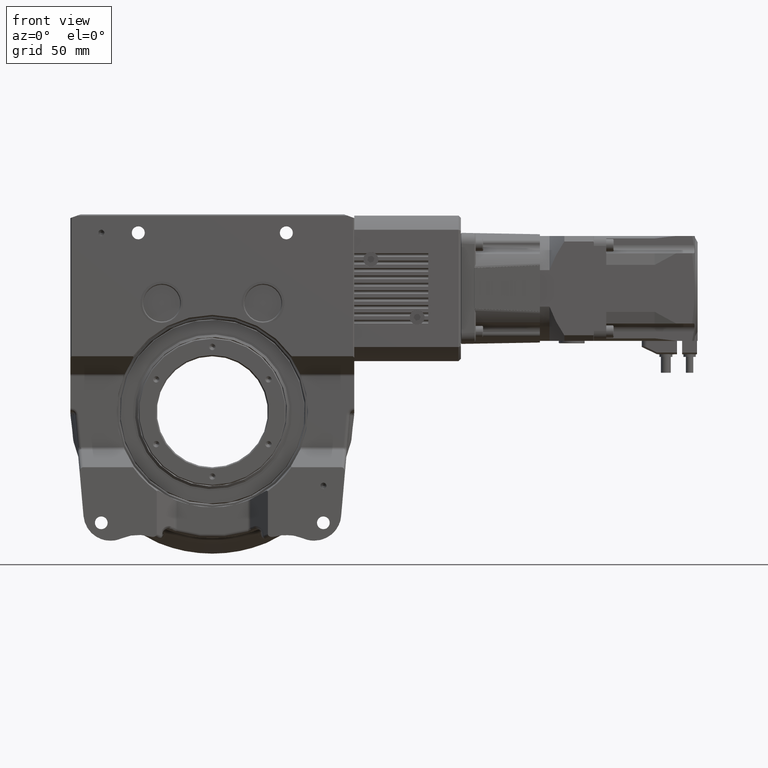
[diagram: clean part render]
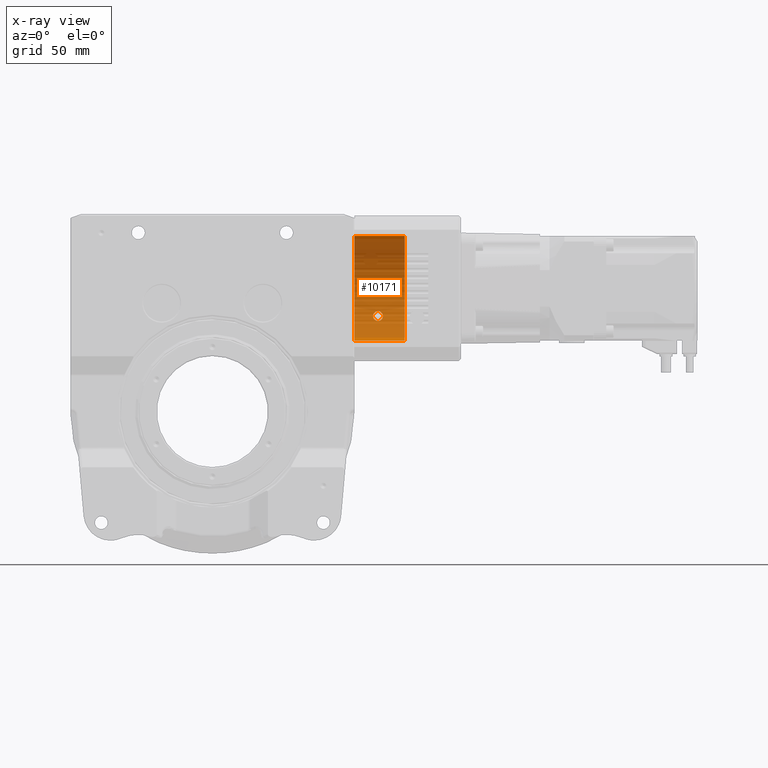
[diagram: x-ray — body ghosted, one internal face saturated and labeled with its STEP entity id]
A machine part, front view, then the same camera in x-ray: the body is ghosted and one INTERNAL B-rep face — a face not visible from any outside direction — is saturated and labeled: STEP entity #10171.
In plain terms, the highlighted cylindrical surface (partial cylindrical patch) has radius 42.5 mm, axis along (-1, 0, -0).
Its self-contained STEP definition (entity closure, byte-faithful):
#301 = CARTESIAN_POINT ( 'NONE',  ( 41.00000000000000000, -1.479556674915532139E-14, -9.103828801926278898E-15 ) ) ;
#400 = CARTESIAN_POINT ( 'NONE',  ( 15.29978478132024833, 36.06660106536676835, -22.48223053018564954 ) ) ;
#817 = CARTESIAN_POINT ( 'NONE',  ( 16.31345728858891775, 34.26561410451524381, -25.14203194345421366 ) ) ;
#935 = EDGE_CURVE ( 'NONE', #71832, #28870, #65900, .T. ) ;
#1270 = CARTESIAN_POINT ( 'NONE',  ( 15.51432274911836018, 35.22140623543903359, -23.78481578097856541 ) ) ;
#1374 = CARTESIAN_POINT ( 'NONE',  ( 22.28540000549770284, 34.34727685331174030, -25.03061622257607155 ) ) ;
#1685 = CARTESIAN_POINT ( 'NONE',  ( 15.33563922787203637, 35.71689265845810013, -23.03366875791155266 ) ) ;
#2111 = CARTESIAN_POINT ( 'NONE',  ( 15.59160713736390136, 35.08209012854449327, -23.98951764624354155 ) ) ;
#2220 = CARTESIAN_POINT ( 'NONE',  ( 22.57356522680116484, 34.63216682195626817, -24.63459177904891817 ) ) ;
#2537 = CARTESIAN_POINT ( 'NONE',  ( 17.08951086396071162, 33.76643756617028913, -25.80931757875746868 ) ) ;
#2652 = CARTESIAN_POINT ( 'NONE',  ( 22.88920799413548934, 35.05030438437506035, -24.03595390986932756 ) ) ;
#3059 = CARTESIAN_POINT ( 'NONE',  ( 21.27685701688333353, 33.70328194105818653, -25.89097600904747409 ) ) ;
#3480 = CARTESIAN_POINT ( 'NONE',  ( 22.90846093382135962, 35.08220382917011904, -23.98935155917719797 ) ) ;
#3926 = CARTESIAN_POINT ( 'NONE',  ( 23.18548905780180291, 35.83887962600027777, -22.84343478459900467 ) ) ;
#4351 = CARTESIAN_POINT ( 'NONE',  ( 21.79735604803297733, 37.77867800301650902, -19.46909322326048652 ) ) ;
#4771 = CARTESIAN_POINT ( 'NONE',  ( 23.14852174951569808, 35.64040922566865532, -23.15256229206407923 ) ) ;
#5200 = CARTESIAN_POINT ( 'NONE',  ( 22.97492122321878938, 36.84315321652081821, -21.18565376194870353 ) ) ;
#5543 = ORIENTED_EDGE ( 'NONE', *, *, #74014, .T. ) ;
#6057 = CARTESIAN_POINT ( 'NONE',  ( 18.16253179362676207, 38.18286965525741294, -18.66280604335118198 ) ) ;
#7368 = CARTESIAN_POINT ( 'NONE',  ( 15.54309646532040112, 36.87185967419583221, -21.13565540575528701 ) ) ;
#7802 = CARTESIAN_POINT ( 'NONE',  ( 15.30015631575340507, 36.02940669188735257, -22.54178166052903975 ) ) ;
#8062 = CIRCLE ( 'NONE', #80267, 42.50000000000000000 ) ;
#8249 = CARTESIAN_POINT ( 'NONE',  ( 18.15138969627565402, 33.35731052550647036, -26.33679968175579234 ) ) ;
#8653 = CARTESIAN_POINT ( 'NONE',  ( 16.23666141247848316, 34.32992435367859940, -25.05440728717464438 ) ) ;
#8673 = ORIENTED_EDGE ( 'NONE', *, *, #935, .F. ) ;
#8755 = CARTESIAN_POINT ( 'NONE',  ( 22.04941873299804200, 34.15870454558252334, -25.28705151049062394 ) ) ;
#9073 = CARTESIAN_POINT ( 'NONE',  ( 15.37648627386421474, 35.56098704304270797, -23.27361297623175673 ) ) ;
#9184 = CARTESIAN_POINT ( 'NONE',  ( 22.80612336903905302, 34.92305342265012769, -24.22063027322121087 ) ) ;
#9502 = CARTESIAN_POINT ( 'NONE',  ( 15.58957560607638015, 35.08550728274053654, -23.98452063231084708 ) ) ;
#9616 = CARTESIAN_POINT ( 'NONE',  ( 21.53045731662804840, 33.82988609232091193, -25.72526025444771491 ) ) ;
#9986 = CARTESIAN_POINT ( 'NONE',  ( 176.2081528017129699, -6.358779235422208944E-14, -3.912606967342589238E-14 ) ) ;
#10029 = CARTESIAN_POINT ( 'NONE',  ( 23.07174452827394973, 35.41261384975426552, -23.49907201918068012 ) ) ;
#10171 = ADVANCED_FACE ( 'NONE', ( #41758, #68706 ), #81804, .F. ) ;
#10452 = CARTESIAN_POINT ( 'NONE',  ( 23.08143645917277453, 35.43756921907156965, -23.46138105707414212 ) ) ;
#10894 = CARTESIAN_POINT ( 'NONE',  ( 23.16734957612590051, 35.72557691357537379, -23.02053683810790119 ) ) ;
#11197 = ORIENTED_EDGE ( 'NONE', *, *, #40093, .F. ) ;
#11419 = EDGE_LOOP ( 'NONE', ( #8673, #11197 ) ) ;
#11736 = CARTESIAN_POINT ( 'NONE',  ( 23.11421693242535724, 35.53144362120588085, -23.31880737360579658 ) ) ;
#12224 = ORIENTED_EDGE ( 'NONE', *, *, #63042, .F. ) ;
#12242 = CARTESIAN_POINT ( 'NONE',  ( 176.2081528017129699, -6.719216272908639409E-14, -42.50000000000000000 ) ) ;
#12599 = CARTESIAN_POINT ( 'NONE',  ( 17.16358638402724779, 37.94840697371871130, -19.13445936909795009 ) ) ;
#13354 = DIRECTION ( 'NONE',  ( -1.000000000000000000, 3.608674816867150188E-16, 1.632680918566404821E-16 ) ) ;
#13906 = CARTESIAN_POINT ( 'NONE',  ( 16.71624586886541408, 37.77945592378642914, -19.46649644198949858 ) ) ;
#14315 = CARTESIAN_POINT ( 'NONE',  ( 16.36425067430731772, 34.22499853139120773, -25.19721344180907252 ) ) ;
#14419 = CARTESIAN_POINT ( 'NONE',  ( 22.20783254219951530, 34.28154108734690197, -25.12044091341996932 ) ) ;
#14740 = CARTESIAN_POINT ( 'NONE',  ( 17.19714433674786136, 33.71449985628262169, -25.87694277536891363 ) ) ;
#14851 = CARTESIAN_POINT ( 'NONE',  ( 19.74117534102132510, 33.29019343801216735, -26.41997742725870779 ) ) ;
#15294 = CARTESIAN_POINT ( 'NONE',  ( 22.45551148787222573, 34.50712700814493417, -24.80962703882231679 ) ) ;
#16019 = CARTESIAN_POINT ( 'NONE',  ( 16.28789686547316862, 34.28675290107270968, -25.11325879475811007 ) ) ;
#16120 = CARTESIAN_POINT ( 'NONE',  ( 21.75336574613267260, 33.95656476141162727, -25.55806863962160946 ) ) ;
#16565 = CARTESIAN_POINT ( 'NONE',  ( 23.04258757267195534, 35.34126986828706407, -23.60647370471283679 ) ) ;
#16973 = CARTESIAN_POINT ( 'NONE',  ( 23.19450660354412364, 35.92366600673088328, -22.70987164790558666 ) ) ;
#17392 = CARTESIAN_POINT ( 'NONE',  ( 23.19637320554696913, 35.94747642876362193, -22.67220452326321123 ) ) ;
#17829 = CARTESIAN_POINT ( 'NONE',  ( 19.81055723592430340, 38.23803734503121632, -18.54999999999999361 ) ) ;
#17911 = CARTESIAN_POINT ( 'NONE',  ( 9.436895709313829016E-15, -8.998161896089599844E-15, 42.50000000000000000 ) ) ;
#18249 = CARTESIAN_POINT ( 'NONE',  ( 23.02305751782932930, 35.29840338262187061, -23.67051116075690587 ) ) ;
#18663 = CARTESIAN_POINT ( 'NONE',  ( 15.55178413372251711, 36.88534003016341956, -21.11212819644573457 ) ) ;
#18735 = LINE ( 'NONE', #12242, #80385 ) ;
#19536 = CARTESIAN_POINT ( 'NONE',  ( 16.35612342718946977, 37.59997237058190223, -19.81140975675401705 ) ) ;
#20837 = CARTESIAN_POINT ( 'NONE',  ( 18.70841364712721955, 33.26631178835430802, -26.45000000000000639 ) ) ;
#21146 = ORIENTED_EDGE ( 'NONE', *, *, #43737, .T. ) ;
#21254 = CARTESIAN_POINT ( 'NONE',  ( 15.55656300985439167, 35.14282507855106985, -23.90056033438833438 ) ) ;
#21360 = CARTESIAN_POINT ( 'NONE',  ( 20.80847621143253434, 33.51857051253227837, -26.12959476599358055 ) ) ;
#21683 = CARTESIAN_POINT ( 'NONE',  ( 19.25000000000000000, 33.26631178835430802, -26.45000000000000284 ) ) ;
#21793 = CARTESIAN_POINT ( 'NONE',  ( 21.96789840726524190, 34.09902684896525926, -25.36757139316960163 ) ) ;
#22129 = CARTESIAN_POINT ( 'NONE',  ( 16.34312850872915845, 34.24173430225272341, -25.17448498346218955 ) ) ;
#22231 = CARTESIAN_POINT ( 'NONE',  ( 20.98905128085062088, 33.58140029748380329, -26.04887529864798168 ) ) ;
#22664 = CARTESIAN_POINT ( 'NONE',  ( 19.25000000000000000, 38.23803734503120211, -18.55000000000000071 ) ) ;
#23060 = CARTESIAN_POINT ( 'NONE',  ( 20.76024621163769623, 33.50252658490551028, -26.15017689690946412 ) ) ;
#23509 = CARTESIAN_POINT ( 'NONE',  ( 22.93459501938466261, 35.12633647211259103, -23.92478217558063491 ) ) ;
#23920 = CARTESIAN_POINT ( 'NONE',  ( 22.49296222093694197, 37.37026131007877439, -20.24141479686581491 ) ) ;
#24345 = CARTESIAN_POINT ( 'NONE',  ( 21.18411973732698783, 37.98874635893057672, -19.05527031463867260 ) ) ;
#24788 = CARTESIAN_POINT ( 'NONE',  ( 23.19846393322838196, 35.98637907297585059, -22.61040669758322252 ) ) ;
#25211 = CARTESIAN_POINT ( 'NONE',  ( 21.35755064518556168, 37.93779400534084090, -19.15655008530299241 ) ) ;
#26073 = CARTESIAN_POINT ( 'NONE',  ( 15.65624224740684944, 37.02883677722697797, -20.85936073706819371 ) ) ;
#26508 = CARTESIAN_POINT ( 'NONE',  ( 15.30302805342804540, 36.16002755954627901, -22.33154333065028041 ) ) ;
#27148 = EDGE_CURVE ( 'NONE', #35101, #52426, #18735, .T. ) ;
#27357 = CARTESIAN_POINT ( 'NONE',  ( 17.61743047935344464, 33.54407415138572901, -26.09684201016513683 ) ) ;
#27797 = CARTESIAN_POINT ( 'NONE',  ( 16.36968215787350900, 34.22072573447574229, -25.20301466979887195 ) ) ;
#28214 = CARTESIAN_POINT ( 'NONE',  ( 15.58668569227041978, 35.09038715090879634, -23.97738373400684253 ) ) ;
#28284 = DIRECTION ( 'NONE',  ( -1.000000000000000000, 3.608674816867150188E-16, 2.220446049250315053E-16 ) ) ;
#28319 = CARTESIAN_POINT ( 'NONE',  ( 19.39013904087209283, 33.26631178835432223, -26.45000000000000639 ) ) ;
#28644 = CARTESIAN_POINT ( 'NONE',  ( 16.20235072183273672, 34.35989713473707496, -25.01343228042355449 ) ) ;
#28753 = CARTESIAN_POINT ( 'NONE',  ( 22.57895942161077230, 34.63815976785981832, -24.62616362261041658 ) ) ;
#28870 = VERTEX_POINT ( 'NONE', #51045 ) ;
#29074 = CARTESIAN_POINT ( 'NONE',  ( 15.41878521964541982, 35.42805733015586611, -23.47629001751365863 ) ) ;
#29180 = CARTESIAN_POINT ( 'NONE',  ( 22.90047231023990548, 35.06885516991229679, -24.00886576047836840 ) ) ;
#29583 = CARTESIAN_POINT ( 'NONE',  ( 21.89679758047902780, 34.05041180987250016, -25.43274505094753479 ) ) ;
#30007 = CARTESIAN_POINT ( 'NONE',  ( 23.19868709589793809, 35.99173905112439087, -22.60187361891378899 ) ) ;
#30130 = CARTESIAN_POINT ( 'NONE',  ( -9.436895709313829016E-15, -3.604370374864314904E-15, -42.50000000000000000 ) ) ;
#30450 = CARTESIAN_POINT ( 'NONE',  ( 22.99679945245626911, 36.80671140426903776, -21.24889606100329331 ) ) ;
#30865 = CARTESIAN_POINT ( 'NONE',  ( 21.47022343335745376, 37.90050533255458021, -19.23023890977423989 ) ) ;
#31288 = CARTESIAN_POINT ( 'NONE',  ( 23.09408847473070736, 36.61087742835304226, -21.58436131980893791 ) ) ;
#31732 = CARTESIAN_POINT ( 'NONE',  ( 22.19614968477443284, 37.56965996165462940, -19.86884123445541661 ) ) ;
#32577 = CARTESIAN_POINT ( 'NONE',  ( 16.56011985033142153, 37.70704833095830821, -19.60657067845178148 ) ) ;
#33460 = CARTESIAN_POINT ( 'NONE',  ( 15.39926696315541577, 36.61011447597523727, -21.58694273435308020 ) ) ;
#34316 = CARTESIAN_POINT ( 'NONE',  ( 15.30123996589861157, 35.99354157486477845, -22.59900384689430197 ) ) ;
#34427 = CARTESIAN_POINT ( 'NONE',  ( 19.95092496073077726, 33.31594084154957613, -26.38747486224314542 ) ) ;
#34759 = CARTESIAN_POINT ( 'NONE',  ( 15.32770272191052818, 35.75734939930750045, -22.97077068582407833 ) ) ;
#34858 = CARTESIAN_POINT ( 'NONE',  ( 20.35344654913742701, 33.38885103068976434, -26.29523891422229198 ) ) ;
#35101 = VERTEX_POINT ( 'NONE', #78156 ) ;
#35272 = CARTESIAN_POINT ( 'NONE',  ( 22.55119564032431967, 34.60758951015088769, -24.66911939475972559 ) ) ;
#35595 = CARTESIAN_POINT ( 'NONE',  ( 15.56825395363443931, 35.12203447541261880, -23.93106250024920101 ) ) ;
#35698 = CARTESIAN_POINT ( 'NONE',  ( 22.84646335840171716, 34.98310752161835069, -24.13369880942343926 ) ) ;
#36128 = CARTESIAN_POINT ( 'NONE',  ( 22.11842668570188053, 34.21142503220566766, -25.21563940238661061 ) ) ;
#36973 = CARTESIAN_POINT ( 'NONE',  ( 23.04984558528059324, 36.70741542987560990, -21.41976802186825424 ) ) ;
#37422 = CARTESIAN_POINT ( 'NONE',  ( 23.19786993986317114, 35.97367491484273927, -22.63061263172598458 ) ) ;
#37689 = DIRECTION ( 'NONE',  ( -2.220446049250310123E-16, -8.480871470268981378E-17, -1.000000000000000000 ) ) ;
#38254 = CARTESIAN_POINT ( 'NONE',  ( 23.18269033171392834, 36.32824580503003631, -22.05793991299401924 ) ) ;
#38692 = CARTESIAN_POINT ( 'NONE',  ( 16.39812243550938220, 37.62354255053896424, -19.76660493023240406 ) ) ;
#39110 = CARTESIAN_POINT ( 'NONE',  ( 16.82504827822642568, 37.82427967172763772, -19.37886550660506657 ) ) ;
#39537 = CARTESIAN_POINT ( 'NONE',  ( 15.32113688175901878, 36.31914855417892340, -22.07180179811740928 ) ) ;
#40093 = EDGE_CURVE ( 'NONE', #28870, #71832, #78169, .T. ) ;
#40411 = CARTESIAN_POINT ( 'NONE',  ( 16.32647465895040639, 37.58290756029298052, -19.84376645725452448 ) ) ;
#40828 = CARTESIAN_POINT ( 'NONE',  ( 17.62287609769035157, 33.54215171034679344, -26.09931205489934669 ) ) ;
#41266 = CARTESIAN_POINT ( 'NONE',  ( 15.35948555936215953, 35.61913227510343205, -23.18456309245950564 ) ) ;
#41377 = CARTESIAN_POINT ( 'NONE',  ( 22.10697844710403004, 34.20254724804498636, -25.22768091385785283 ) ) ;
#41423 = AXIS2_PLACEMENT_3D ( 'NONE', #9986, #56524, #49550 ) ;
#41758 = FACE_OUTER_BOUND ( 'NONE', #57927, .T. ) ;
#41798 = CARTESIAN_POINT ( 'NONE',  ( 22.51960300039219121, 34.57360431442339177, -24.71676611389831635 ) ) ;
#42109 = CARTESIAN_POINT ( 'NONE',  ( 16.09943800966794214, 34.45339091587616309, -24.88505575386178492 ) ) ;
#42208 = CARTESIAN_POINT ( 'NONE',  ( 21.46070524829151083, 33.79299488646025651, -25.77372772872180562 ) ) ;
#42531 = CARTESIAN_POINT ( 'NONE',  ( 17.53594515596766712, 33.57356134552911442, -26.05894628664526280 ) ) ;
#42634 = CARTESIAN_POINT ( 'NONE',  ( 22.08977468980479841, 34.18928343164339623, -25.24566209808462602 ) ) ;
#43063 = CARTESIAN_POINT ( 'NONE',  ( 23.18984042520030542, 35.87423906023605014, -22.78787365275207577 ) ) ;
#43474 = CARTESIAN_POINT ( 'NONE',  ( 23.20524567443646546, 36.17073195241389527, -22.31664802757023836 ) ) ;
#43737 = EDGE_CURVE ( 'NONE', #64965, #50291, #76863, .T. ) ;
#43912 = CARTESIAN_POINT ( 'NONE',  ( 22.25516056478716109, 37.53396847213782195, -19.93618546857287654 ) ) ;
#44357 = CARTESIAN_POINT ( 'NONE',  ( 20.94718537771451849, 38.04983442894783963, -18.93304497465947378 ) ) ;
#44764 = CARTESIAN_POINT ( 'NONE',  ( 23.19886275261094610, 35.99613371443318499, -22.59487514245510553 ) ) ;
#45187 = CARTESIAN_POINT ( 'NONE',  ( 15.53390818083242664, 36.85738219596391474, -21.16089378915038921 ) ) ;
#46058 = CARTESIAN_POINT ( 'NONE',  ( 15.57253363197291485, 36.91654223784674116, -21.05754170751422905 ) ) ;
#47371 = CARTESIAN_POINT ( 'NONE',  ( 15.35096560367701990, 35.65236028064486362, -23.13337305411313238 ) ) ;
#47785 = CARTESIAN_POINT ( 'NONE',  ( 15.70085071868984272, 34.89887479970591500, -24.25741707937973501 ) ) ;
#47893 = CARTESIAN_POINT ( 'NONE',  ( 20.85803751170945475, 33.53546531185372714, -26.10790386327071388 ) ) ;
#48215 = CARTESIAN_POINT ( 'NONE',  ( 17.44086823319973334, 33.60984962768991835, -26.01226466319189612 ) ) ;
#48328 = CARTESIAN_POINT ( 'NONE',  ( 22.12496890987535636, 34.21653158800948091, -25.20870900720629493 ) ) ;
#48357 = CARTESIAN_POINT ( 'NONE',  ( 41.00000000000000000, -8.998161896089610888E-15, 42.50000000000000000 ) ) ;
#48656 = CARTESIAN_POINT ( 'NONE',  ( 16.36846823596166800, 34.22168024143164189, -25.20171875187803323 ) ) ;
#48753 = CARTESIAN_POINT ( 'NONE',  ( 22.69529131165291957, 34.77309999365424176, -24.43568208701107025 ) ) ;
#49064 = CARTESIAN_POINT ( 'NONE',  ( 17.58348242946500051, 33.55618030561465304, -26.08128619849061636 ) ) ;
#49164 = CARTESIAN_POINT ( 'NONE',  ( 20.02058145809155576, 33.32638906327488115, -26.37426906933336568 ) ) ;
#49550 = DIRECTION ( 'NONE',  ( 0.000000000000000000, -8.480871470268970285E-17, -1.000000000000000000 ) ) ;
#50037 = CARTESIAN_POINT ( 'NONE',  ( 23.10965464923284074, 35.51749838384528601, -23.34005000123173446 ) ) ;
#50291 = VERTEX_POINT ( 'NONE', #17911 ) ;
#50451 = CARTESIAN_POINT ( 'NONE',  ( 22.38141737230267481, 37.45098732091391014, -20.09155589394288199 ) ) ;
#50744 = DIRECTION ( 'NONE',  ( -1.000000000000000000, 3.608674816867150188E-16, 2.220446049250309876E-16 ) ) ;
#50880 = CARTESIAN_POINT ( 'NONE',  ( 22.76153079792496570, 37.13367845660726374, -20.67333801166338958 ) ) ;
#51045 = CARTESIAN_POINT ( 'NONE',  ( 19.25000000000000000, 33.26631178835430802, -26.45000000000000284 ) ) ;
#51315 = CARTESIAN_POINT ( 'NONE',  ( 21.09629908185154790, 38.01297737182805037, -19.00694196395529190 ) ) ;
#51461 = CIRCLE ( 'NONE', #79258, 42.50000000000000000 ) ;
#52426 = VERTEX_POINT ( 'NONE', #30130 ) ;
#52609 = CARTESIAN_POINT ( 'NONE',  ( 15.46016833379416333, 36.73923179639201919, -21.36660650256878569 ) ) ;
#53032 = CARTESIAN_POINT ( 'NONE',  ( 16.48382545012105638, 37.66955154181517429, -19.67876291905979613 ) ) ;
#53354 = DIRECTION ( 'NONE',  ( 1.632680918566406793E-16, 8.480871470268981378E-17, 1.000000000000000000 ) ) ;
#53889 = CARTESIAN_POINT ( 'NONE',  ( 15.45884852143777444, 35.33549913608095494, -23.61526450755861717 ) ) ;
#54317 = CARTESIAN_POINT ( 'NONE',  ( 15.38177612695046648, 35.54392768794372870, -23.29966040226594259 ) ) ;
#54421 = CARTESIAN_POINT ( 'NONE',  ( 22.39923067664311418, 34.45270603449460367, -24.88508680347803192 ) ) ;
#54741 = CARTESIAN_POINT ( 'NONE',  ( 15.30910118134792164, 35.87102508877737961, -22.79322415743594732 ) ) ;
#55173 = CARTESIAN_POINT ( 'NONE',  ( 15.59156442492673023, 35.08216100527575776, -23.98941403811632966 ) ) ;
#55288 = CARTESIAN_POINT ( 'NONE',  ( 22.63851599044971508, 34.70467453017593584, -24.53257474112912817 ) ) ;
#55615 = CARTESIAN_POINT ( 'NONE',  ( 16.03084028475917577, 34.52048735392044421, -24.79219315393383738 ) ) ;
#56125 = CARTESIAN_POINT ( 'NONE',  ( 20.64718678037332111, 33.46691110311039807, -26.19578583076087952 ) ) ;
#56524 = DIRECTION ( 'NONE',  ( -1.000000000000000000, 3.608674816867150188E-16, -3.060470729984675142E-32 ) ) ;
#56567 = CARTESIAN_POINT ( 'NONE',  ( 22.91128463999657328, 35.08695938591908714, -23.98239525739921518 ) ) ;
#57006 = CARTESIAN_POINT ( 'NONE',  ( 22.98155372821413422, 36.83230925588176774, -21.20450076280010876 ) ) ;
#57421 = CARTESIAN_POINT ( 'NONE',  ( 23.19882907505468594, 35.99529355632311933, -22.59621305287849680 ) ) ;
#57851 = CARTESIAN_POINT ( 'NONE',  ( 23.02632869480546773, 36.75433459389069668, -21.33936131023270732 ) ) ;
#57927 = EDGE_LOOP ( 'NONE', ( #12224, #21146, #5543, #77117 ) ) ;
#58293 = CARTESIAN_POINT ( 'NONE',  ( 22.97047812933793765, 36.85035440201463075, -21.17312900333777748 ) ) ;
#59999 = CARTESIAN_POINT ( 'NONE',  ( 15.33701595972291543, 36.39461764137490007, -21.94693081500948040 ) ) ;
#60425 = CARTESIAN_POINT ( 'NONE',  ( 16.35792093738570685, 34.22998993288511826, -25.19043597847577232 ) ) ;
#60865 = CARTESIAN_POINT ( 'NONE',  ( 15.38015331112915440, 35.54910952733327179, -23.29175263068196955 ) ) ;
#60977 = CARTESIAN_POINT ( 'NONE',  ( 20.84057625275427839, 33.52943983088668034, -26.11564288213080332 ) ) ;
#61402 = CARTESIAN_POINT ( 'NONE',  ( 21.65611233055605922, 33.89851076873721780, -25.63491278915596183 ) ) ;
#61719 = CARTESIAN_POINT ( 'NONE',  ( 15.59079684774644647, 35.08345215733415046, -23.98752594814185812 ) ) ;
#61824 = CARTESIAN_POINT ( 'NONE',  ( 22.56463166093118389, 34.62231456744589053, -24.64843776552587329 ) ) ;
#62147 = CARTESIAN_POINT ( 'NONE',  ( 16.77109373166982920, 33.93620454572421608, -25.58621261239420974 ) ) ;
#62257 = CARTESIAN_POINT ( 'NONE',  ( 22.86641371750984320, 35.01368050868742898, -24.08932566444789103 ) ) ;
#63042 = EDGE_CURVE ( 'NONE', #64965, #35101, #51461, .T. ) ;
#63090 = CARTESIAN_POINT ( 'NONE',  ( 23.09569341664440856, 35.47676333628989198, -23.40197387133592954 ) ) ;
#63513 = CARTESIAN_POINT ( 'NONE',  ( 23.11685360971656422, 35.53968397683449609, -23.30624335897967470 ) ) ;
#63824 = CARTESIAN_POINT ( 'NONE',  ( 0.000000000000000000, 0.000000000000000000, 0.000000000000000000 ) ) ;
#63956 = CARTESIAN_POINT ( 'NONE',  ( 22.22510016154181756, 37.55229455931417704, -19.90163294194554311 ) ) ;
#64436 = DIRECTION ( 'NONE',  ( -1.000000000000000000, 3.608674816867150188E-16, 2.220446049250315053E-16 ) ) ;
#64797 = CARTESIAN_POINT ( 'NONE',  ( 22.20495813308553323, 37.56441680125058724, -19.87874938792560542 ) ) ;
#64965 = VERTEX_POINT ( 'NONE', #48357 ) ;
#65649 = CARTESIAN_POINT ( 'NONE',  ( 17.40547212471960137, 38.01736658593597440, -18.99625157045810653 ) ) ;
#65900 = B_SPLINE_CURVE_WITH_KNOTS ( 'NONE', 3,
 ( #73480, #72179, #6057, #65649, #12599, #39110, #13906, #32577, #53032, #38692, #19536, #85228, #40411, #86116, #85671, #84813, #66948, #66527, #26073, #73033, #46058, #18663, #7368, #78283, #45187, #52609, #33460, #59999, #39537, #66080, #26508, #79580, #400, #7802, #81298, #80879, #68231, #34316, #81738, #54741, #34759, #1685, #47371, #41266, #75599, #9073, #60865, #54317, #29074, #53889, #1270, #80459, #21254, #35595, #67365, #28214, #9502, #61719, #2111, #55173, #47785, #67803, #55615, #42109, #28644, #8653, #16019, #817, #22129, #60425, #14315, #48656, #27797, #74323, #62147, #2537, #14740, #75190, #48215, #42531, #49064, #73900, #27357, #40828, #8249, #20837, #21683 ),
 .UNSPECIFIED., .F., .F.,
 ( 4, 2, 2, 2, 1, 1, 1, 2, 2, 2, 2, 1, 1, 1, 2, 2, 2, 2, 2, 1, 1, 1, 2, 2, 2, 2, 1, 1, 2, 2, 2, 2, 1, 1, 1, 1, 2, 2, 2, 2, 2, 1, 1, 1, 2, 2, 2, 2, 1, 1, 1, 2, 2, 4 ),
 ( 0.000000000000000000, 0.1250000000001709188, 0.1875000000002565448, 0.2187500000002991496, 0.2343750000003206879, 0.2421875000003309852, 0.2460937500003356482, 0.2480468750003384515, 0.2500000000003412270, 0.3125000000004246048, 0.3437500000004666267, 0.3593750000004872769, 0.3671875000004979905, 0.3710937500005033751, 0.3730468750005057066, 0.3750000000005080381, 0.4375000000005774825, 0.4687500000006115108, 0.4843750000006288858, 0.4921875000006378786, 0.4960937500006417089, 0.4980468750006439849, 0.4990234375006457612, 0.5000000000006474821, 0.5312500000006745715, 0.5468750000006880052, 0.5546875000006942225, 0.5585937500006968870, 0.5605468750006985523, 0.5625000000007002177, 0.5937500000007249756, 0.6093750000007372991, 0.6171875000007431833, 0.6210937500007455148, 0.6230468750007459589, 0.6240234375007450707, 0.6245117187507444045, 0.6250000000007437384, 0.6875000000006140644, 0.7187500000005494494, 0.7343750000005174750, 0.7421875000005014877, 0.7460937500004939382, 0.7480468750004899414, 0.7490234375004872769, 0.7500000000004846124, 0.8125000000003707035, 0.8437500000003136380, 0.8593750000002844391, 0.8671875000002698952, 0.8710937500002622347, 0.8730468750002586820, 0.8750000000002551293, 1.000000000000000000 ),
 .UNSPECIFIED. ) ;
#66080 = CARTESIAN_POINT ( 'NONE',  ( 15.30641732892797968, 36.20048970989115844, -22.26577683309941591 ) ) ;
#66527 = CARTESIAN_POINT ( 'NONE',  ( 15.74081774377890675, 37.12832907526447457, -20.68194945224009018 ) ) ;
#66948 = CARTESIAN_POINT ( 'NONE',  ( 15.80243793879825631, 37.19158580739864561, -20.56785026619627388 ) ) ;
#67365 = CARTESIAN_POINT ( 'NONE',  ( 15.58074691902046283, 35.10048518945877305, -23.96261103591301023 ) ) ;
#67475 = CARTESIAN_POINT ( 'NONE',  ( 20.54950789757826612, 33.43950414614427302, -26.23075225656157983 ) ) ;
#67803 = CARTESIAN_POINT ( 'NONE',  ( 15.82945686297984977, 34.73607841990799017, -24.49021093265678317 ) ) ;
#67923 = CARTESIAN_POINT ( 'NONE',  ( 20.22180515768262410, 33.36063001835702124, -26.33096303449508824 ) ) ;
#68231 = CARTESIAN_POINT ( 'NONE',  ( 15.30109641418076194, 35.99720971048920148, -22.59316057924361942 ) ) ;
#68329 = CARTESIAN_POINT ( 'NONE',  ( 21.50259800088794648, 33.81503677920603934, -25.74477911856540402 ) ) ;
#68706 = FACE_BOUND ( 'NONE', #11419, .T. ) ;
#68746 = CARTESIAN_POINT ( 'NONE',  ( 22.77864585363165872, 34.88447319023122617, -24.27616378205383540 ) ) ;
#69047 = VECTOR ( 'NONE', #28284, 1000.000000000000000 ) ;
#69182 = CARTESIAN_POINT ( 'NONE',  ( 21.36226943720895122, 33.74318834187238991, -25.83897302748576408 ) ) ;
#70027 = CARTESIAN_POINT ( 'NONE',  ( 23.11986663808108844, 36.54291919601473637, -21.69914121414137398 ) ) ;
#70454 = CARTESIAN_POINT ( 'NONE',  ( 23.10275127535436113, 35.49680066070963136, -23.37155271892163455 ) ) ;
#70893 = CARTESIAN_POINT ( 'NONE',  ( 19.25000000000000000, 38.23803734503120211, -18.55000000000000071 ) ) ;
#71306 = CARTESIAN_POINT ( 'NONE',  ( 22.96744975602933891, 35.18389243156521218, -23.84063602540626547 ) ) ;
#71832 = VERTEX_POINT ( 'NONE', #22664 ) ;
#72179 = CARTESIAN_POINT ( 'NONE',  ( 18.70896971920613439, 38.23803734503123053, -18.54999999999999716 ) ) ;
#73033 = CARTESIAN_POINT ( 'NONE',  ( 15.61591814633673003, 36.97793882824918654, -20.94962964186325394 ) ) ;
#73480 = CARTESIAN_POINT ( 'NONE',  ( 19.25000000000000000, 38.23803734503120211, -18.55000000000000071 ) ) ;
#73900 = CARTESIAN_POINT ( 'NONE',  ( 17.60385195698582095, 33.54889481018686581, -26.09064789506204107 ) ) ;
#74014 = EDGE_CURVE ( 'NONE', #50291, #52426, #8062, .T. ) ;
#74323 = CARTESIAN_POINT ( 'NONE',  ( 16.56469588513327196, 34.06798766528144995, -25.41035909565198381 ) ) ;
#74883 = CARTESIAN_POINT ( 'NONE',  ( 21.10499757335733051, 33.62718237025409707, -25.98983590533095622 ) ) ;
#75190 = CARTESIAN_POINT ( 'NONE',  ( 17.35947796986054925, 33.64357021639656153, -25.96875931337460841 ) ) ;
#75286 = CARTESIAN_POINT ( 'NONE',  ( 19.84626066843869907, 33.30138796128930778, -26.40586059627942106 ) ) ;
#75599 = CARTESIAN_POINT ( 'NONE',  ( 15.37111729729296705, 35.57868308952755143, -23.24656206633522970 ) ) ;
#75706 = CARTESIAN_POINT ( 'NONE',  ( 20.05710540036953660, 33.33228841707061463, -26.36680970729808848 ) ) ;
#76150 = CARTESIAN_POINT ( 'NONE',  ( 21.00701334329800218, 38.03534063887940420, -18.96213193143062625 ) ) ;
#76579 = CARTESIAN_POINT ( 'NONE',  ( 22.91005338724870910, 35.08488237563893364, -23.98543383346748925 ) ) ;
#76863 = LINE ( 'NONE', #77300, #69047 ) ;
#76999 = CARTESIAN_POINT ( 'NONE',  ( 22.32420609198166161, 37.49020853215764504, -20.01839327838611027 ) ) ;
#77117 = ORIENTED_EDGE ( 'NONE', *, *, #27148, .F. ) ;
#77300 = CARTESIAN_POINT ( 'NONE',  ( 176.2081528017129699, -6.518817087573399072E-14, 42.50000000000000000 ) ) ;
#77439 = CARTESIAN_POINT ( 'NONE',  ( 20.37303270958803481, 38.17992677570999405, -18.67114606482150663 ) ) ;
#77873 = CARTESIAN_POINT ( 'NONE',  ( 20.91902935417229870, 38.05644181590238873, -18.91976447356189794 ) ) ;
#78156 = CARTESIAN_POINT ( 'NONE',  ( 41.00000000000000000, -1.100215374944197797E-14, -42.50000000000000000 ) ) ;
#78169 = B_SPLINE_CURVE_WITH_KNOTS ( 'NONE', 3,
 ( #82256, #28319, #81853, #14851, #75286, #34427, #49164, #75706, #67923, #34858, #67475, #56125, #23060, #21360, #60977, #47893, #22231, #74883, #3059, #69182, #42208, #68329, #9616, #81415, #61402, #16120, #29583, #21793, #8755, #42634, #41377, #36128, #48328, #14419, #1374, #54421, #15294, #41798, #35272, #61824, #2220, #28753, #55288, #48753, #68746, #9184, #35698, #62257, #2652, #29180, #83110, #3480, #76579, #56567, #23509, #71306, #18249, #16565, #10029, #10452, #63090, #70454, #50037, #11736, #63513, #4771, #10894, #3926, #43063, #16973, #17392, #37422, #24788, #30007, #57421, #44764, #43474, #38254, #70027, #31288, #36973, #57851, #30450, #57006, #5200, #58293, #84818, #84384, #50880, #83535, #23920, #50451, #76999, #43912, #63956, #64797, #31732, #83951, #4351, #30865, #25211, #24345, #51315, #76150, #44357, #77873, #77439, #17829, #70893 ),
 .UNSPECIFIED., .F., .F.,
 ( 4, 2, 1, 2, 2, 2, 1, 1, 2, 2, 2, 1, 1, 2, 2, 2, 1, 1, 1, 2, 2, 2, 1, 1, 1, 2, 2, 2, 2, 1, 1, 1, 1, 2, 2, 2, 2, 2, 1, 2, 2, 2, 2, 1, 1, 1, 2, 2, 2, 2, 1, 1, 1, 2, 2, 2, 2, 1, 1, 2, 2, 2, 2, 1, 2, 2, 4 ),
 ( 0.000000000000000000, 0.03125000000004583833, 0.04687500000006834117, 0.05468750000007996381, 0.06250000000009159340, 0.09375000000013959667, 0.1093750000001638828, 0.1171875000001756789, 0.1210937500001814660, 0.1250000000001872669, 0.1562500000002391420, 0.1718750000002645661, 0.1796875000002771949, 0.1835937500002832456, 0.1875000000002892686, 0.2187500000003349265, 0.2343750000003585465, 0.2421875000003698153, 0.2460937500003757827, 0.2480468750003786416, 0.2500000000003815281, 0.2812500000004299894, 0.2968750000004546918, 0.3046875000004676259, 0.3085937500004738987, 0.3105468750004771739, 0.3125000000004804490, 0.3437500000005274114, 0.3593750000005502265, 0.3671875000005618839, 0.3710937500005674350, 0.3730468750005700440, 0.3740234375005713763, 0.3745117187505716538, 0.3750000000005719314, 0.4062500000005582756, 0.4218750000005516143, 0.4296875000005482836, 0.4335937500005465628, 0.4355468750005454526, 0.4375000000005442868, 0.4687500000005292433, 0.4843750000005216938, 0.4921875000005175860, 0.4960937500005150880, 0.4980468750005132561, 0.4990234375005129230, 0.5000000000005125900, 0.5625000000004448664, 0.5937500000004102274, 0.6093750000003927969, 0.6171875000003844702, 0.6210937500003799183, 0.6230468750003781420, 0.6250000000003762546, 0.6875000000003028688, 0.7187500000002662315, 0.7343750000002476908, 0.7421875000002392531, 0.7460937500002349232, 0.7500000000002307043, 0.8125000000001730838, 0.8437500000001443290, 0.8593750000001298961, 0.8671875000001229017, 0.8750000000001159073, 1.000000000000000000 ),
 .UNSPECIFIED. ) ;
#78283 = CARTESIAN_POINT ( 'NONE',  ( 15.53735056328462960, 36.86284877438497887, -21.15136952899546330 ) ) ;
#79258 = AXIS2_PLACEMENT_3D ( 'NONE', #301, #13354, #53354 ) ;
#79580 = CARTESIAN_POINT ( 'NONE',  ( 15.30044846536922165, 36.09797053065553740, -22.43174331963631829 ) ) ;
#80267 = AXIS2_PLACEMENT_3D ( 'NONE', #63824, #50744, #37689 ) ;
#80385 = VECTOR ( 'NONE', #64436, 1000.000000000000000 ) ;
#80459 = CARTESIAN_POINT ( 'NONE',  ( 15.53209501423775940, 35.18749933363680782, -23.83486580546341926 ) ) ;
#80879 = CARTESIAN_POINT ( 'NONE',  ( 15.30090327401464556, 36.00259422384055341, -22.58457820305939379 ) ) ;
#81298 = CARTESIAN_POINT ( 'NONE',  ( 15.30063480812626686, 36.01066033915367370, -22.57171575273982356 ) ) ;
#81415 = CARTESIAN_POINT ( 'NONE',  ( 21.54597324282349291, 33.83827457156543517, -25.71422374549375078 ) ) ;
#81738 = CARTESIAN_POINT ( 'NONE',  ( 15.30357867804837113, 35.93654950431957928, -22.68976040853381804 ) ) ;
#81804 = CYLINDRICAL_SURFACE ( 'NONE', #41423, 42.50000000000000000 ) ;
#81853 = CARTESIAN_POINT ( 'NONE',  ( 19.53075346220463615, 33.27228220076877108, -26.44253503178358500 ) ) ;
#82256 = CARTESIAN_POINT ( 'NONE',  ( 19.25000000000000000, 33.26631178835430802, -26.45000000000000284 ) ) ;
#83110 = CARTESIAN_POINT ( 'NONE',  ( 22.90606968373882069, 35.07819027460427463, -23.99522094320303722 ) ) ;
#83535 = CARTESIAN_POINT ( 'NONE',  ( 22.56348894871855748, 37.31339918505854314, -20.34603815543953687 ) ) ;
#83951 = CARTESIAN_POINT ( 'NONE',  ( 22.00090571578783027, 37.68417803508540942, -19.65212572607385866 ) ) ;
#84384 = CARTESIAN_POINT ( 'NONE',  ( 22.87549480395218993, 37.00168549978571519, -20.90954765545309613 ) ) ;
#84813 = CARTESIAN_POINT ( 'NONE',  ( 16.00094213980991498, 37.37214160412867869, -20.23909972359713905 ) ) ;
#84818 = CARTESIAN_POINT ( 'NONE',  ( 22.96883153081224549, 36.85300802715151747, -21.16851149959167344 ) ) ;
#85228 = CARTESIAN_POINT ( 'NONE',  ( 16.33830926383494386, 37.58974964681766551, -19.83079897529319879 ) ) ;
#85671 = CARTESIAN_POINT ( 'NONE',  ( 16.15145327179306278, 37.48022626905206778, -20.03808523239694850 ) ) ;
#86116 = CARTESIAN_POINT ( 'NONE',  ( 16.31980399760087508, 37.57901878020469155, -19.85113052251262644 ) ) ;